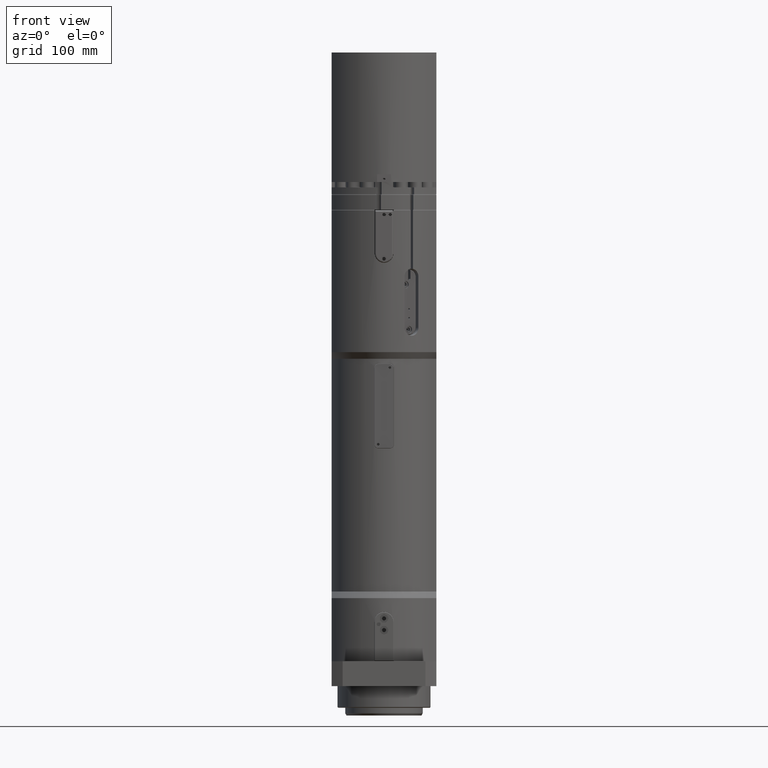
[diagram: clean part render]
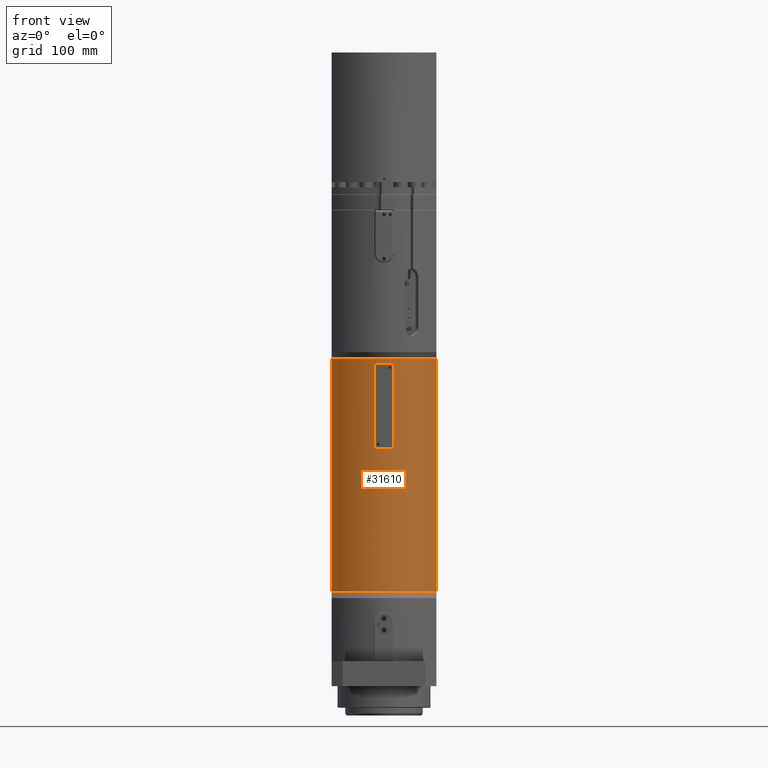
[diagram: same view with one face highlighted and labeled with its STEP entity id]
A machine part, front view. The second image highlights one B-rep face of the part: STEP entity #31610.
In plain terms, the highlighted cylindrical surface (partial cylindrical patch) has radius 71 mm, axis along (0, 0, 1).
Its self-contained STEP definition (entity closure, byte-faithful):
#584=FACE_BOUND('',#10269,.T.);
#3345=LINE('',#56307,#5973);
#3350=LINE('',#56327,#5978);
#3354=LINE('',#56372,#5982);
#3431=LINE('',#56973,#6059);
#5973=VECTOR('',#39995,10.);
#5978=VECTOR('',#40004,10.);
#5982=VECTOR('',#40018,10.);
#6059=VECTOR('',#40265,10.);
#7072=CYLINDRICAL_SURFACE('',#33996,71.);
#8411=FACE_OUTER_BOUND('',#10268,.T.);
#10268=EDGE_LOOP('',(#26005,#26006,#26007,#26008));
#10269=EDGE_LOOP('',(#26009,#26010,#26011,#26012,#26013,#26014,#26015,#26016));
#11310=B_SPLINE_CURVE_WITH_KNOTS('',3,(#56280,#56281,#56282,#56283,#56284,
#56285,#56286,#56287,#56288,#56289),.UNSPECIFIED.,.F.,.F.,(4,2,2,2,4),(0.754765466642834,
0.945045464758803,1.13532546287477,1.32373726526096,1.51214906764714),
 .UNSPECIFIED.);
#11311=B_SPLINE_CURVE_WITH_KNOTS('',3,(#56313,#56314,#56315,#56316,#56317,
#56318,#56319,#56320,#56321,#56322),.UNSPECIFIED.,.F.,.F.,(4,2,2,2,4),(0.,
0.188411802386185,0.376823604772369,0.567103602888338,0.757383601004307),
 .UNSPECIFIED.);
#11312=B_SPLINE_CURVE_WITH_KNOTS('',3,(#56330,#56331,#56332,#56333,#56334,
#56335,#56336,#56337,#56338,#56339),.UNSPECIFIED.,.F.,.F.,(4,2,2,2,4),(1.51214906764714,
1.70056087003332,1.8889726724195,2.07925267053547,2.26953266865144),
 .UNSPECIFIED.);
#11313=B_SPLINE_CURVE_WITH_KNOTS('',3,(#56344,#56345,#56346,#56347,#56348,
#56349,#56350,#56351,#56352,#56353),.UNSPECIFIED.,.F.,.F.,(4,2,2,2,4),(-0.757383601004304,
-0.567103602888333,-0.376823604772362,-0.188411802386181,0.),
 .UNSPECIFIED.);
#12271=CIRCLE('',#33930,71.);
#12273=CIRCLE('',#33933,71.);
#12295=CIRCLE('',#33978,71.);
#12296=CIRCLE('',#33980,71.);
#14587=VERTEX_POINT('',#56277);
#14588=VERTEX_POINT('',#56279);
#14595=VERTEX_POINT('',#56306);
#14596=VERTEX_POINT('',#56310);
#14597=VERTEX_POINT('',#56312);
#14598=VERTEX_POINT('',#56325);
#14599=VERTEX_POINT('',#56329);
#14600=VERTEX_POINT('',#56342);
#14604=VERTEX_POINT('',#56367);
#14605=VERTEX_POINT('',#56371);
#14646=VERTEX_POINT('',#56571);
#14648=VERTEX_POINT('',#56579);
#18457=EDGE_CURVE('',#14587,#14588,#11310,.T.);
#18466=EDGE_CURVE('',#14595,#14588,#3345,.T.);
#18469=EDGE_CURVE('',#14596,#14597,#11311,.T.);
#18472=EDGE_CURVE('',#14596,#14598,#3350,.T.);
#18473=EDGE_CURVE('',#14595,#14599,#11312,.T.);
#18476=EDGE_CURVE('',#14600,#14598,#11313,.T.);
#18482=EDGE_CURVE('',#14605,#14604,#3354,.T.);
#18536=EDGE_CURVE('',#14605,#14646,#12271,.T.);
#18540=EDGE_CURVE('',#14648,#14604,#12273,.T.);
#18612=EDGE_CURVE('',#14600,#14599,#12295,.T.);
#18613=EDGE_CURVE('',#14587,#14597,#12296,.T.);
#18632=EDGE_CURVE('',#14648,#14646,#3431,.T.);
#26005=ORIENTED_EDGE('',*,*,#18632,.T.);
#26006=ORIENTED_EDGE('',*,*,#18536,.F.);
#26007=ORIENTED_EDGE('',*,*,#18482,.T.);
#26008=ORIENTED_EDGE('',*,*,#18540,.F.);
#26009=ORIENTED_EDGE('',*,*,#18466,.T.);
#26010=ORIENTED_EDGE('',*,*,#18457,.F.);
#26011=ORIENTED_EDGE('',*,*,#18613,.T.);
#26012=ORIENTED_EDGE('',*,*,#18469,.F.);
#26013=ORIENTED_EDGE('',*,*,#18472,.T.);
#26014=ORIENTED_EDGE('',*,*,#18476,.F.);
#26015=ORIENTED_EDGE('',*,*,#18612,.T.);
#26016=ORIENTED_EDGE('',*,*,#18473,.F.);
#31610=ADVANCED_FACE('',(#8411,#584),#7072,.T.);
#33930=AXIS2_PLACEMENT_3D('',#56572,#40086,#40087);
#33933=AXIS2_PLACEMENT_3D('',#56583,#40092,#40093);
#33978=AXIS2_PLACEMENT_3D('',#56901,#40221,#40222);
#33980=AXIS2_PLACEMENT_3D('',#56903,#40225,#40226);
#33996=AXIS2_PLACEMENT_3D('',#56976,#40270,#40271);
#39995=DIRECTION('',(0.,0.,-1.));
#40004=DIRECTION('',(0.,0.,1.));
#40018=DIRECTION('',(0.,0.,1.));
#40086=DIRECTION('center_axis',(0.,0.,-1.));
#40087=DIRECTION('ref_axis',(1.,0.,0.));
#40092=DIRECTION('center_axis',(0.,0.,1.));
#40093=DIRECTION('ref_axis',(1.,0.,0.));
#40221=DIRECTION('center_axis',(0.,0.,1.));
#40222=DIRECTION('ref_axis',(1.,0.,0.));
#40225=DIRECTION('center_axis',(0.,0.,-1.));
#40226=DIRECTION('ref_axis',(1.,0.,0.));
#40265=DIRECTION('',(0.,0.,-1.));
#40270=DIRECTION('center_axis',(0.,0.,1.));
#40271=DIRECTION('ref_axis',(1.,0.,0.));
#56277=CARTESIAN_POINT('',(7.99999999999999,-70.5478560978291,306.));
#56279=CARTESIAN_POINT('',(13.,-69.7997134664606,311.));
#56280=CARTESIAN_POINT('Ctrl Pts',(7.99999999999999,-70.5478560978291,306.));
#56281=CARTESIAN_POINT('Ctrl Pts',(8.63022750823382,-70.47638943187,306.));
#56282=CARTESIAN_POINT('Ctrl Pts',(9.30140724545769,-70.3908520544637,306.126325800676));
#56283=CARTESIAN_POINT('Ctrl Pts',(10.5353496659492,-70.2167689169394,306.638995190135));
#56284=CARTESIAN_POINT('Ctrl Pts',(11.0981895928635,-70.1286903102816,307.025311379369));
#56285=CARTESIAN_POINT('Ctrl Pts',(11.9829839411032,-69.9829060972424,307.913738284868));
#56286=CARTESIAN_POINT('Ctrl Pts',(12.3658664695957,-69.9153209936031,308.473832546715));
#56287=CARTESIAN_POINT('Ctrl Pts',(12.8744095828624,-69.8234655504188,309.702909879649));
#56288=CARTESIAN_POINT('Ctrl Pts',(13.,-69.7997134664606,310.371960658713));
#56289=CARTESIAN_POINT('Ctrl Pts',(13.,-69.7997134664606,311.));
#56306=CARTESIAN_POINT('',(13.,-69.7997134664606,411.));
#56307=CARTESIAN_POINT('',(13.,-69.7997134664606,122.));
#56310=CARTESIAN_POINT('',(-13.0000000000001,-69.7997134664606,311.));
#56312=CARTESIAN_POINT('',(-8.00000000000001,-70.5478560978291,306.));
#56313=CARTESIAN_POINT('Ctrl Pts',(-13.,-69.7997134664606,311.));
#56314=CARTESIAN_POINT('Ctrl Pts',(-13.,-69.7997134664606,310.371960658713));
#56315=CARTESIAN_POINT('Ctrl Pts',(-12.8744095828624,-69.8234655504188,
309.702909879649));
#56316=CARTESIAN_POINT('Ctrl Pts',(-12.3658664695957,-69.9153209936031,
308.473832546715));
#56317=CARTESIAN_POINT('Ctrl Pts',(-11.9829839411033,-69.9829060972424,
307.913738284868));
#56318=CARTESIAN_POINT('Ctrl Pts',(-11.0981895928636,-70.1286903102816,
307.025311379369));
#56319=CARTESIAN_POINT('Ctrl Pts',(-10.5353496659492,-70.2167689169394,
306.638995190135));
#56320=CARTESIAN_POINT('Ctrl Pts',(-9.3014072454577,-70.3908520544637,306.126325800676));
#56321=CARTESIAN_POINT('Ctrl Pts',(-8.63022750823384,-70.47638943187,306.));
#56322=CARTESIAN_POINT('Ctrl Pts',(-8.00000000000001,-70.5478560978291,
306.));
#56325=CARTESIAN_POINT('',(-13.0000000000001,-69.7997134664606,411.));
#56327=CARTESIAN_POINT('',(-13.0000000000001,-69.7997134664606,122.));
#56329=CARTESIAN_POINT('',(8.00000000000001,-70.5478560978291,416.));
#56330=CARTESIAN_POINT('Ctrl Pts',(13.,-69.7997134664606,411.));
#56331=CARTESIAN_POINT('Ctrl Pts',(13.,-69.7997134664606,411.628039341287));
#56332=CARTESIAN_POINT('Ctrl Pts',(12.8744095828624,-69.8234655504188,412.297090120352));
#56333=CARTESIAN_POINT('Ctrl Pts',(12.3658664695957,-69.9153209936031,413.526167453285));
#56334=CARTESIAN_POINT('Ctrl Pts',(11.9829839411032,-69.9829060972424,414.086261715132));
#56335=CARTESIAN_POINT('Ctrl Pts',(11.0981895928636,-70.1286903102816,414.974688620631));
#56336=CARTESIAN_POINT('Ctrl Pts',(10.5353496659491,-70.2167689169394,415.361004809865));
#56337=CARTESIAN_POINT('Ctrl Pts',(9.30140724545764,-70.3908520544637,415.873674199324));
#56338=CARTESIAN_POINT('Ctrl Pts',(8.63022750823385,-70.47638943187,416.));
#56339=CARTESIAN_POINT('Ctrl Pts',(8.00000000000002,-70.5478560978291,416.));
#56342=CARTESIAN_POINT('',(-7.99999999999998,-70.5478560978291,416.));
#56344=CARTESIAN_POINT('Ctrl Pts',(-7.99999999999998,-70.5478560978291,
416.));
#56345=CARTESIAN_POINT('Ctrl Pts',(-8.63022750823381,-70.47638943187,416.));
#56346=CARTESIAN_POINT('Ctrl Pts',(-9.30140724545762,-70.3908520544637,
415.873674199324));
#56347=CARTESIAN_POINT('Ctrl Pts',(-10.5353496659491,-70.2167689169394,
415.361004809865));
#56348=CARTESIAN_POINT('Ctrl Pts',(-11.0981895928635,-70.1286903102816,
414.974688620631));
#56349=CARTESIAN_POINT('Ctrl Pts',(-11.9829839411032,-69.9829060972424,
414.086261715132));
#56350=CARTESIAN_POINT('Ctrl Pts',(-12.3658664695956,-69.9153209936031,
413.526167453285));
#56351=CARTESIAN_POINT('Ctrl Pts',(-12.8744095828623,-69.8234655504188,
412.297090120352));
#56352=CARTESIAN_POINT('Ctrl Pts',(-13.,-69.7997134664606,411.628039341287));
#56353=CARTESIAN_POINT('Ctrl Pts',(-13.,-69.7997134664606,411.));
#56367=CARTESIAN_POINT('',(67.5,-22.017038856304,422.));
#56371=CARTESIAN_POINT('',(67.5,-22.017038856304,122.));
#56372=CARTESIAN_POINT('',(67.5,-22.017038856304,122.));
#56571=CARTESIAN_POINT('',(-67.5,-22.017038856304,122.));
#56572=CARTESIAN_POINT('Origin',(0.,0.,122.));
#56579=CARTESIAN_POINT('',(-67.5,-22.017038856304,422.));
#56583=CARTESIAN_POINT('Origin',(0.,0.,422.));
#56901=CARTESIAN_POINT('Origin',(0.,0.,416.));
#56903=CARTESIAN_POINT('Origin',(0.,0.,306.));
#56973=CARTESIAN_POINT('',(-67.5,-22.017038856304,122.));
#56976=CARTESIAN_POINT('Origin',(0.,0.,122.));